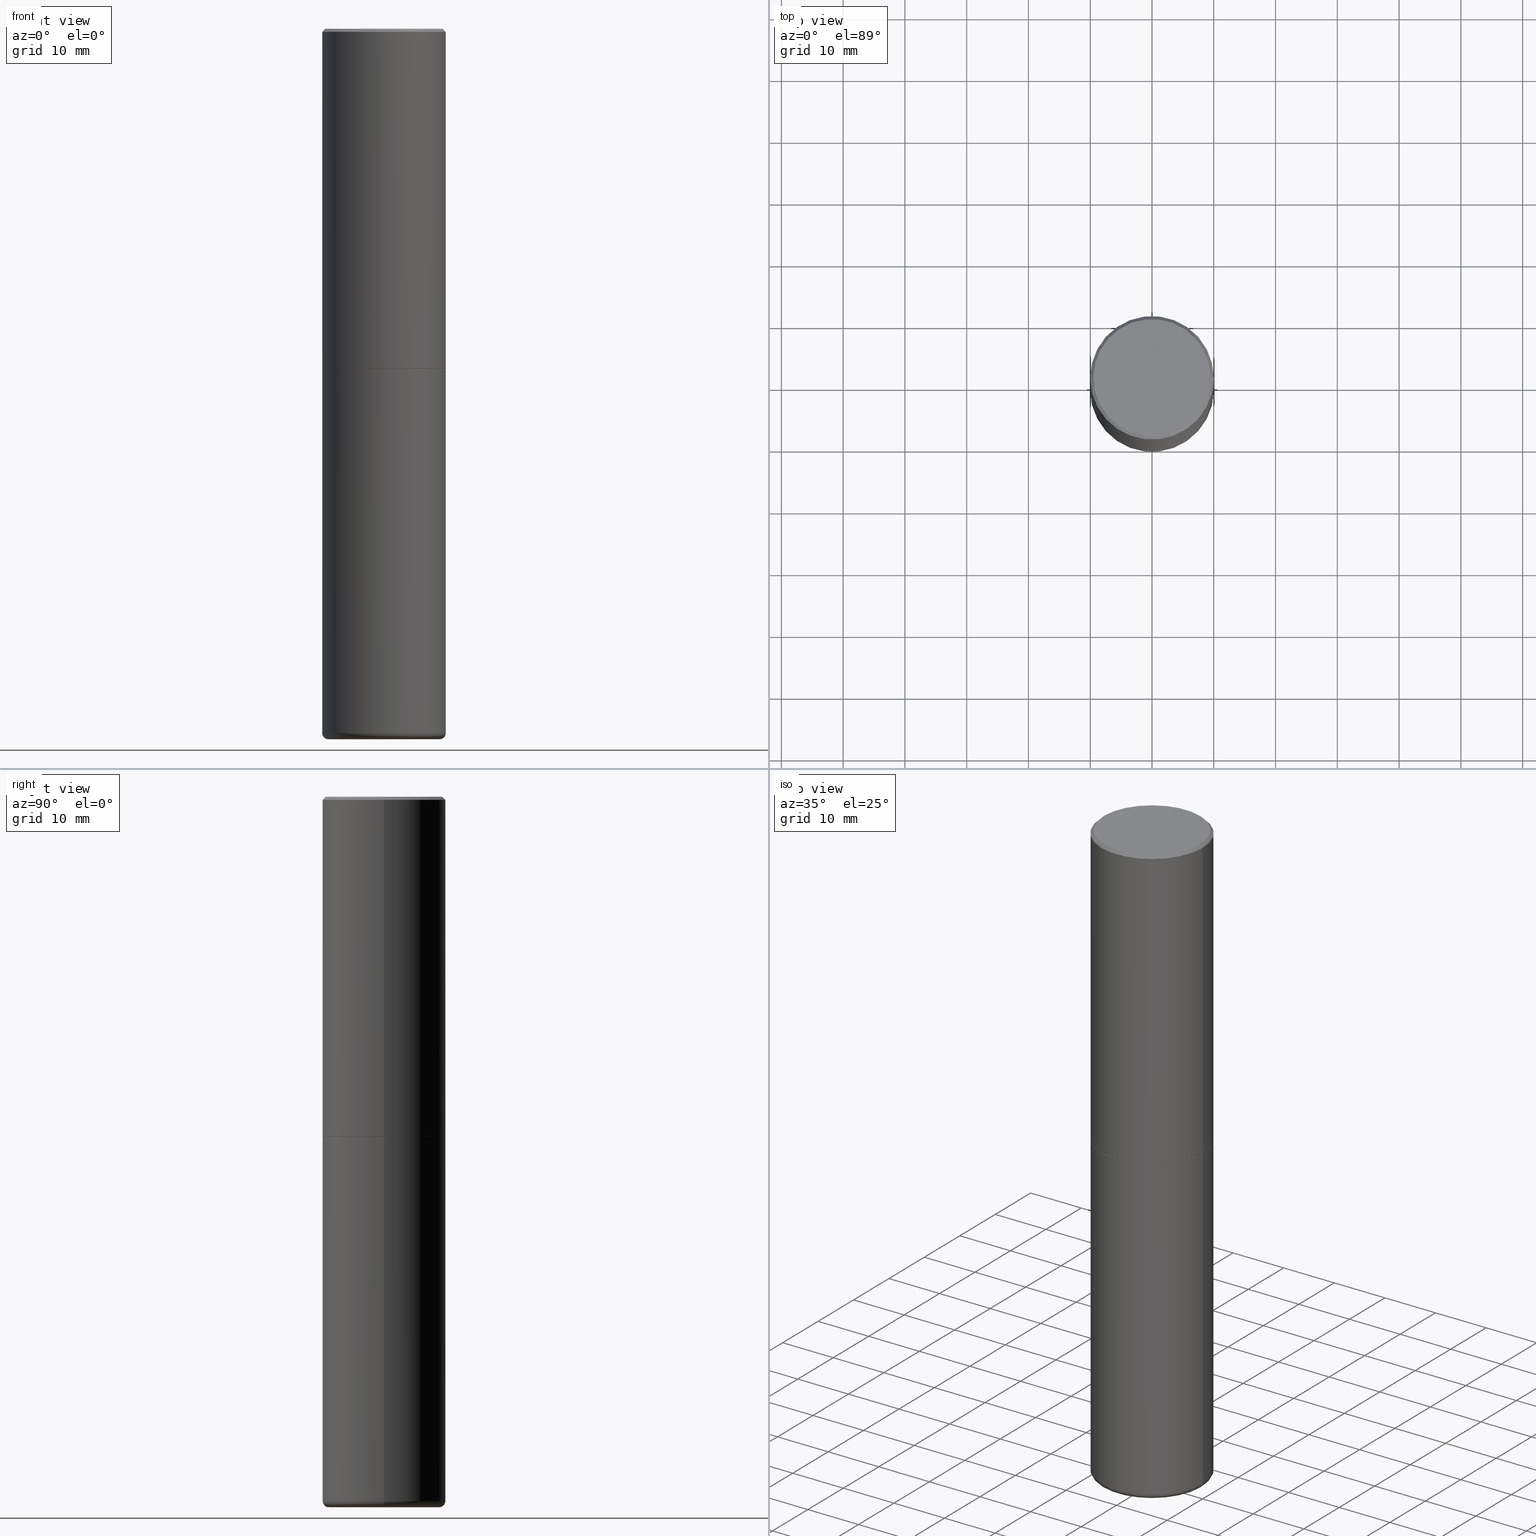
[diagram: canonical four-view strip — front | top / right | iso, engineering-drawing reading convention]
A machine part, canonical four-view strip (front | top / right | iso — engineering-drawing reading convention). The complete STEP part file that produces these views, byte-faithful:
ISO-10303-21;
HEADER;
FILE_DESCRIPTION (( 'STEP AP203' ),
    '1' );
FILE_NAME ('74827.STEP',
    '2024-05-02T19:21:37',
    ( '' ),
    ( '' ),
    'SwSTEP 2.0',
    'SolidWorks 2023',
    '' );
FILE_SCHEMA (( 'CONFIG_CONTROL_DESIGN' ));
ENDSEC;

DATA;
#1 = CARTESIAN_POINT ( 'NONE',  ( -0.3937000000000002720, -1.015989167596965718E-15, -2.164399999999999658 ) ) ;
#2 = CIRCLE ( 'NONE', #319, 0.3937000000000001054 ) ;
#3 = VERTEX_POINT ( 'NONE', #130 ) ;
#4 = CARTESIAN_POINT ( 'NONE',  ( 0.3937000000000001054, -1.841965895120088790E-14, -4.488199999999999079 ) ) ;
#5 = CARTESIAN_POINT ( 'NONE',  ( 2.609533152651356620E-15, 0.3736999999999999211, -1.191650995338022328E-15 ) ) ;
#6 = CC_DESIGN_PERSON_AND_ORGANIZATION_ASSIGNMENT ( #188, #283, ( #333 ) ) ;
#7 = FACE_OUTER_BOUND ( 'NONE', #301, .T. ) ;
#8 = DIRECTION ( 'NONE',  ( 1.000000000000000000, -6.982962677686266711E-15, 4.876176775795935793E-29 ) ) ;
#9 = VECTOR ( 'NONE', #87, 39.37007874015748143 ) ;
#10 =( LENGTH_UNIT ( ) NAMED_UNIT ( * ) SI_UNIT ( $, .METRE. ) );
#11 = ADVANCED_FACE ( 'NONE', ( #230 ), #215, .T. ) ;
#12 = ORIENTED_EDGE ( 'NONE', *, *, #145, .T. ) ;
#13 = FACE_OUTER_BOUND ( 'NONE', #133, .T. ) ;
#14 = ORIENTED_EDGE ( 'NONE', *, *, #314, .T. ) ;
#15 = DIRECTION ( 'NONE',  ( -1.000000000000000000, 6.982962677686265922E-15, -4.876176775795935793E-29 ) ) ;
#16 = AXIS2_PLACEMENT_3D ( 'NONE', #108, #79, #73 ) ;
#17 = EDGE_CURVE ( 'NONE', #368, #144, #34, .T. ) ;
#18 = FACE_OUTER_BOUND ( 'NONE', #75, .T. ) ;
#19 = CARTESIAN_POINT ( 'NONE',  ( 5.295418152913293224E-29, -7.560453691130945845E-15, -2.165399999999999547 ) ) ;
#20 = PERSON_AND_ORGANIZATION ( #64, #248 ) ;
#21 = ORIENTED_EDGE ( 'NONE', *, *, #81, .T. ) ;
#22 = DIRECTION ( 'NONE',  ( -2.445468806185136877E-29, 3.491481338843145188E-15, 1.000000000000000000 ) ) ;
#23 = APPROVAL_ROLE ( '' ) ;
#24 = AXIS2_PLACEMENT_3D ( 'NONE', #399, #377, #309 ) ;
#25 = DATE_AND_TIME ( #92, #128 ) ;
#26 = PERSON_AND_ORGANIZATION_ROLE ( 'creator' ) ;
#27 = CALENDAR_DATE ( 2024, 2, 5 ) ;
#28 = CC_DESIGN_PERSON_AND_ORGANIZATION_ASSIGNMENT ( #216, #351, ( #85 ) ) ;
#29 = VECTOR ( 'NONE', #22, 39.37007874015748143 ) ;
#30 = VERTEX_POINT ( 'NONE', #152 ) ;
#31 = DIRECTION ( 'NONE',  ( -1.000000000000000000, 6.982962677686265922E-15, -4.876176775795935793E-29 ) ) ;
#32 = CARTESIAN_POINT ( 'NONE',  ( 5.295418152913293224E-29, -7.560453691130945845E-15, -2.165399999999999547 ) ) ;
#33 = VERTEX_POINT ( 'NONE', #282 ) ;
#34 = CIRCLE ( 'NONE', #76, 0.03940000000000005997 ) ;
#35 = CARTESIAN_POINT ( 'NONE',  ( -0.3543000000000000038, -1.315301363219776772E-14, -4.488199999999999079 ) ) ;
#36 = CARTESIAN_POINT ( 'NONE',  ( 4.890937612370294178E-31, -6.982962677686321191E-17, -0.02000000000000008715 ) ) ;
#37 = APPROVAL_PERSON_ORGANIZATION ( #187, #286, #322 ) ;
#38 = DIRECTION ( 'NONE',  ( -1.000000000000000000, 6.982962677686266711E-15, 0.000000000000000000 ) ) ;
#39 = CARTESIAN_POINT ( 'NONE',  ( -0.3937000000000002164, 2.797406750687515970E-15, -1.936584745033357576E-29 ) ) ;
#40 = MANIFOLD_SOLID_BREP ( 'Body-Move/Copy2[1]', #307 ) ;
#41 = AXIS2_PLACEMENT_3D ( 'NONE', #236, #271, #15 ) ;
#42 = DIRECTION ( 'NONE',  ( -2.445468806185136597E-29, 3.491481338843145583E-15, 1.000000000000000000 ) ) ;
#43 = DIRECTION ( 'NONE',  ( -2.445468806185136597E-29, 3.491481338843145583E-15, 1.000000000000000000 ) ) ;
#44 = CARTESIAN_POINT ( 'NONE',  ( 0.3937000000000001054, -2.770807688499516128E-15, -0.02000000000000008715 ) ) ;
#45 = EDGE_LOOP ( 'NONE', ( #209, #101, #239, #124 ) ) ;
#46 = CIRCLE ( 'NONE', #140, 0.3926999999999999935 ) ;
#47 = DIRECTION ( 'NONE',  ( -2.445468806185136597E-29, 3.491481338843145583E-15, 1.000000000000000000 ) ) ;
#48 = EDGE_LOOP ( 'NONE', ( #394, #313 ) ) ;
#49 = DATE_AND_TIME ( #27, #52 ) ;
#50 = COORDINATED_UNIVERSAL_TIME_OFFSET ( 5, 0, .BEHIND. ) ;
#51 = VECTOR ( 'NONE', #170, 39.37007874015748143 ) ;
#52 = LOCAL_TIME ( 15, 21, 37.00000000000000000, #324 ) ;
#53 = LENGTH_MEASURE_WITH_UNIT ( LENGTH_MEASURE( 0.02539999999999999897 ), #10 );
#54 = CALENDAR_DATE ( 2024, 2, 5 ) ;
#55 = EDGE_CURVE ( 'NONE', #63, #3, #298, .T. ) ;
#56 = APPROVAL_ROLE ( '' ) ;
#57 = ORIENTED_EDGE ( 'NONE', *, *, #145, .F. ) ;
#58 = AXIS2_PLACEMENT_3D ( 'NONE', #402, #241, #338 ) ;
#59 = AXIS2_PLACEMENT_3D ( 'NONE', #235, #370, #337 ) ;
#60 = APPROVAL_PERSON_ORGANIZATION ( #184, #275, #23 ) ;
#61 = DIRECTION ( 'NONE',  ( -2.445468806185136597E-29, 3.491481338843145583E-15, 1.000000000000000000 ) ) ;
#62 = DIRECTION ( 'NONE',  ( -1.000000000000000000, 6.982962677686266711E-15, 0.000000000000000000 ) ) ;
#63 = VERTEX_POINT ( 'NONE', #91 ) ;
#64 = PERSON ( 'UNSPECIFIED', 'UNSPECIFIED', 'UNSPECIFIED', ('UNSPECIFIED'), ('UNSPECIFIED'), ('UNSPECIFIED') ) ;
#65 = SHAPE_DEFINITION_REPRESENTATION ( #311, #202 ) ;
#66 = DIRECTION ( 'NONE',  ( 2.438088387897960049E-29, -3.491481338843145188E-15, -1.000000000000000000 ) ) ;
#67 = EDGE_CURVE ( 'NONE', #30, #403, #183, .T. ) ;
#68 = ORIENTED_EDGE ( 'NONE', *, *, #153, .F. ) ;
#69 = FACE_OUTER_BOUND ( 'NONE', #109, .T. ) ;
#70 = ORIENTED_EDGE ( 'NONE', *, *, #409, .T. ) ;
#71 = FACE_OUTER_BOUND ( 'NONE', #228, .T. ) ;
#72 = EDGE_CURVE ( 'NONE', #368, #182, #339, .T. ) ;
#73 = DIRECTION ( 'NONE',  ( 1.000000000000000000, -6.982962677686317987E-15, 0.000000000000000000 ) ) ;
#74 = CARTESIAN_POINT ( 'NONE',  ( -0.3926999999999999935, -4.770152367801032067E-15, -2.165399999999999547 ) ) ;
#75 = EDGE_LOOP ( 'NONE', ( #270, #156, #302, #380 ) ) ;
#76 = AXIS2_PLACEMENT_3D ( 'NONE', #35, #205, #148 ) ;
#77 = LOCAL_TIME ( 15, 21, 37.00000000000000000, #143 ) ;
#78 = FACE_OUTER_BOUND ( 'NONE', #48, .T. ) ;
#79 = DIRECTION ( 'NONE',  ( -6.982962677686266711E-15, -1.000000000000000000, 3.491481338843145583E-15 ) ) ;
#80 = ORIENTED_EDGE ( 'NONE', *, *, #362, .F. ) ;
#81 = EDGE_CURVE ( 'NONE', #137, #406, #253, .T. ) ;
#82 = CARTESIAN_POINT ( 'NONE',  ( 0.000000000000000000, 0.000000000000000000, 0.000000000000000000 ) ) ;
#83 = ORIENTED_EDGE ( 'NONE', *, *, #179, .F. ) ;
#84 = CIRCLE ( 'NONE', #240, 0.3937000000000001054 ) ;
#85 = PRODUCT_DEFINITION_FORMATION_WITH_SPECIFIED_SOURCE ( 'ANY', '', #180, .NOT_KNOWN. ) ;
#86 = ORIENTED_EDGE ( 'NONE', *, *, #358, .T. ) ;
#87 = DIRECTION ( 'NONE',  ( -2.445468806185136877E-29, 3.491481338843145188E-15, 1.000000000000000000 ) ) ;
#88 = SECURITY_CLASSIFICATION_LEVEL ( 'unclassified' ) ;
#89 = AXIS2_PLACEMENT_3D ( 'NONE', #361, #231, #396 ) ;
#90 = EDGE_CURVE ( 'NONE', #233, #406, #326, .T. ) ;
#91 = CARTESIAN_POINT ( 'NONE',  ( 0.3736999999999999211, -2.667287895133367964E-15, 2.262311619753402158E-16 ) ) ;
#92 = CALENDAR_DATE ( 2024, 2, 5 ) ;
#93 = CARTESIAN_POINT ( 'NONE',  ( -0.3937000000000001054, -1.287305979430828910E-14, -4.488199999999999079 ) ) ;
#94 = CIRCLE ( 'NONE', #189, 0.3736999999999999211 ) ;
#95 = CC_DESIGN_SECURITY_CLASSIFICATION ( #333, ( #85 ) ) ;
#96 = ORIENTED_EDGE ( 'NONE', *, *, #55, .F. ) ;
#97 = DIRECTION ( 'NONE',  ( -2.445468806185136597E-29, 3.491481338843145583E-15, 1.000000000000000000 ) ) ;
#98 = CARTESIAN_POINT ( 'NONE',  ( 1.107210456688382298E-28, -1.580803090974622389E-14, -4.527599999999999625 ) ) ;
#99 = ORIENTED_EDGE ( 'NONE', *, *, #67, .T. ) ;
#100 = CARTESIAN_POINT ( 'NONE',  ( 0.3926999999999999935, -1.030266313465834305E-14, -2.165399999999999547 ) ) ;
#101 = ORIENTED_EDGE ( 'NONE', *, *, #387, .T. ) ;
#102 = AXIS2_PLACEMENT_3D ( 'NONE', #279, #116, #222 ) ;
#103 = CYLINDRICAL_SURFACE ( 'NONE', #89, 0.3937000000000000499 ) ;
#104 = APPROVAL ( #414, 'UNSPECIFIED' ) ;
#105 = DIRECTION ( 'NONE',  ( -2.445468806185136597E-29, 3.491481338843145583E-15, 1.000000000000000000 ) ) ;
#106 = UNCERTAINTY_MEASURE_WITH_UNIT (LENGTH_MEASURE( 1.000000000000000082E-05 ), #121, 'distance_accuracy_value', 'NONE');
#107 = DIRECTION ( 'NONE',  ( 1.000000000000000000, -6.982962677686269077E-15, 0.000000000000000000 ) ) ;
#108 = CARTESIAN_POINT ( 'NONE',  ( 0.3543000000000000038, -1.814453022170004631E-14, -4.488199999999999079 ) ) ;
#109 = EDGE_LOOP ( 'NONE', ( #343, #142, #86, #418 ) ) ;
#110 = CIRCLE ( 'NONE', #360, 0.3937000000000002720 ) ;
#111 = EDGE_CURVE ( 'NONE', #136, #30, #165, .T. ) ;
#112 = DIRECTION ( 'NONE',  ( 1.000000000000000000, -6.982962677686266711E-15, 4.876176775795935793E-29 ) ) ;
#113 = DIRECTION ( 'NONE',  ( -2.445468806185136597E-29, 3.491481338843145583E-15, 1.000000000000000000 ) ) ;
#114 = ORIENTED_EDGE ( 'NONE', *, *, #358, .F. ) ;
#115 = AXIS2_PLACEMENT_3D ( 'NONE', #19, #186, #293 ) ;
#116 = DIRECTION ( 'NONE',  ( -2.445468806185136597E-29, 3.491481338843145583E-15, 1.000000000000000000 ) ) ;
#117 = ADVANCED_FACE ( 'NONE', ( #192 ), #195, .T. ) ;
#118 = LOCAL_TIME ( 15, 21, 37.00000000000000000, #150 ) ;
#119 = APPROVAL_DATE_TIME ( #278, #104 ) ;
#120 = ORIENTED_EDGE ( 'NONE', *, *, #367, .F. ) ;
#121 =( CONVERSION_BASED_UNIT ( 'INCH', #53 ) LENGTH_UNIT ( ) NAMED_UNIT ( #325 ) );
#122 = AXIS2_PLACEMENT_3D ( 'NONE', #158, #198, #8 ) ;
#123 = APPROVAL_STATUS ( 'not_yet_approved' ) ;
#124 = ORIENTED_EDGE ( 'NONE', *, *, #111, .F. ) ;
#125 = DIRECTION ( 'NONE',  ( 2.445468806185136597E-29, -3.491481338843145583E-15, -1.000000000000000000 ) ) ;
#126 = PRODUCT_DEFINITION ( 'UNKNOWN', '', #85, #371 ) ;
#127 = AXIS2_PLACEMENT_3D ( 'NONE', #5, #66, #261 ) ;
#128 = LOCAL_TIME ( 15, 21, 37.00000000000000000, #50 ) ;
#129 = DIRECTION ( 'NONE',  ( -2.445468806185136597E-29, 3.491481338843145583E-15, 1.000000000000000000 ) ) ;
#130 = CARTESIAN_POINT ( 'NONE',  ( -0.3736999999999999211, 2.644447966039789453E-15, 2.262311619753034352E-16 ) ) ;
#131 = DIRECTION ( 'NONE',  ( -2.445468806185136877E-29, 3.491481338843145188E-15, 1.000000000000000000 ) ) ;
#132 = ADVANCED_FACE ( 'NONE', ( #297 ), #331, .F. ) ;
#133 = EDGE_LOOP ( 'NONE', ( #68, #373, #99, #57 ) ) ;
#134 = DIRECTION ( 'NONE',  ( 2.438088387897960049E-29, -3.491481338843145188E-15, -1.000000000000000000 ) ) ;
#135 = FACE_OUTER_BOUND ( 'NONE', #352, .T. ) ;
#136 = VERTEX_POINT ( 'NONE', #390 ) ;
#137 = VERTEX_POINT ( 'NONE', #200 ) ;
#138 = FACE_OUTER_BOUND ( 'NONE', #211, .T. ) ;
#139 = DIRECTION ( 'NONE',  ( 1.000000000000000000, -6.982962677686265922E-15, 4.876176775795935793E-29 ) ) ;
#140 = AXIS2_PLACEMENT_3D ( 'NONE', #193, #328, #290 ) ;
#141 = CARTESIAN_POINT ( 'NONE',  ( -0.3937000000000001054, 2.679362779428220707E-15, -0.02000000000000008715 ) ) ;
#142 = ORIENTED_EDGE ( 'NONE', *, *, #72, .T. ) ;
#143 = COORDINATED_UNIVERSAL_TIME_OFFSET ( 5, 0, .BEHIND. ) ;
#144 = VERTEX_POINT ( 'NONE', #93 ) ;
#145 = EDGE_CURVE ( 'NONE', #33, #403, #2, .T. ) ;
#146 = APPLICATION_PROTOCOL_DEFINITION ( 'international standard', 'config_control_design', 1994, #159 ) ;
#147 = CIRCLE ( 'NONE', #374, 0.3937000000000000499 ) ;
#148 = DIRECTION ( 'NONE',  ( -1.000000000000000000, 7.105427357601014480E-15, 0.000000000000000000 ) ) ;
#149 = AXIS2_PLACEMENT_3D ( 'NONE', #376, #42, #139 ) ;
#150 = COORDINATED_UNIVERSAL_TIME_OFFSET ( 5, 0, .BEHIND. ) ;
#151 = DATE_TIME_ROLE ( 'creation_date' ) ;
#152 = CARTESIAN_POINT ( 'NONE',  ( 0.3937000000000002720, -1.030615461599718763E-14, -2.164399999999999658 ) ) ;
#153 = EDGE_CURVE ( 'NONE', #171, #33, #265, .T. ) ;
#154 = DATE_TIME_ROLE ( 'classification_date' ) ;
#155 = AXIS2_PLACEMENT_3D ( 'NONE', #98, #395, #366 ) ;
#156 = ORIENTED_EDGE ( 'NONE', *, *, #245, .T. ) ;
#157 = CARTESIAN_POINT ( 'NONE',  ( 0.3543000000000000038, -1.828209458645046868E-14, -4.527599999999999625 ) ) ;
#158 = CARTESIAN_POINT ( 'NONE',  ( 0.000000000000000000, 0.000000000000000000, 0.000000000000000000 ) ) ;
#159 = APPLICATION_CONTEXT ( 'configuration controlled 3d designs of mechanical parts and assemblies' ) ;
#160 = VECTOR ( 'NONE', #206, 39.37007874015748143 ) ;
#161 = VECTOR ( 'NONE', #175, 39.37007874015748143 ) ;
#162 = DIRECTION ( 'NONE',  ( 1.000000000000000000, -6.982962677686268288E-15, 0.000000000000000000 ) ) ;
#163 = ADVANCED_FACE ( 'NONE', ( #71 ), #103, .T. ) ;
#164 = CARTESIAN_POINT ( 'NONE',  ( 4.890937612370294178E-31, -6.982962677686321191E-17, -0.02000000000000008715 ) ) ;
#165 = LINE ( 'NONE', #100, #177 ) ;
#166 = AXIS2_PLACEMENT_3D ( 'NONE', #348, #47, #210 ) ;
#167 = DIRECTION ( 'NONE',  ( 1.000000000000000000, -6.982962677686266711E-15, 4.877734241229876808E-29 ) ) ;
#168 = ORIENTED_EDGE ( 'NONE', *, *, #204, .F. ) ;
#169 = ADVANCED_FACE ( 'NONE', ( #7 ), #393, .F. ) ;
#170 = DIRECTION ( 'NONE',  ( -2.445468806185136877E-29, 3.491481338843145188E-15, 1.000000000000000000 ) ) ;
#171 = VERTEX_POINT ( 'NONE', #1 ) ;
#172 = CC_DESIGN_PERSON_AND_ORGANIZATION_ASSIGNMENT ( #20, #249, ( #85 ) ) ;
#173 = DIRECTION ( 'NONE',  ( 1.000000000000000000, -6.982962677686268288E-15, 0.000000000000000000 ) ) ;
#174 = ORIENTED_EDGE ( 'NONE', *, *, #367, .T. ) ;
#175 = DIRECTION ( 'NONE',  ( 0.7071067811865454633, -7.319954787623248157E-15, -0.7071067811865495711 ) ) ;
#176 = ORIENTED_EDGE ( 'NONE', *, *, #55, .T. ) ;
#177 = VECTOR ( 'NONE', #289, 39.37007874015748143 ) ;
#178 = LOCAL_TIME ( 15, 21, 37.00000000000000000, #355 ) ;
#179 = EDGE_CURVE ( 'NONE', #406, #137, #147, .T. ) ;
#180 = PRODUCT ( '74827', '74827', '', ( #221 ) ) ;
#181 = CARTESIAN_POINT ( 'NONE',  ( 0.3937000000000000499, -1.030964609733602906E-14, -2.165399999999999547 ) ) ;
#182 = VERTEX_POINT ( 'NONE', #157 ) ;
#183 = LINE ( 'NONE', #316, #29 ) ;
#184 = PERSON_AND_ORGANIZATION ( #64, #248 ) ;
#185 = CONICAL_SURFACE ( 'NONE', #273, 0.3937000000000001054, 0.7853981633974453924 ) ;
#186 = DIRECTION ( 'NONE',  ( -2.445468806185136597E-29, 3.491481338843145583E-15, 1.000000000000000000 ) ) ;
#187 = PERSON_AND_ORGANIZATION ( #64, #248 ) ;
#188 = PERSON_AND_ORGANIZATION ( #64, #248 ) ;
#189 = AXIS2_PLACEMENT_3D ( 'NONE', #305, #105, #167 ) ;
#190 = APPROVAL_PERSON_ORGANIZATION ( #223, #104, #56 ) ;
#191 = ADVANCED_FACE ( 'NONE', ( #264 ), #404, .T. ) ;
#192 = FACE_OUTER_BOUND ( 'NONE', #397, .T. ) ;
#193 = CARTESIAN_POINT ( 'NONE',  ( 5.295418152913293224E-29, -7.560453691130945845E-15, -2.165399999999999547 ) ) ;
#194 = ORIENTED_EDGE ( 'NONE', *, *, #250, .T. ) ;
#195 = CYLINDRICAL_SURFACE ( 'NONE', #122, 0.3937000000000002164 ) ;
#196 = AXIS2_PLACEMENT_3D ( 'NONE', #357, #285, #389 ) ;
#197 = DIRECTION ( 'NONE',  ( 1.000000000000000000, -6.982962677686271444E-15, 4.883557194083114022E-29 ) ) ;
#198 = DIRECTION ( 'NONE',  ( -2.445468806185136597E-29, 3.491481338843145583E-15, 1.000000000000000000 ) ) ;
#199 = ORIENTED_EDGE ( 'NONE', *, *, #204, .T. ) ;
#200 = CARTESIAN_POINT ( 'NONE',  ( -0.3937000000000000499, -8.818053367375859687E-15, -2.165399999999999547 ) ) ;
#201 = CARTESIAN_POINT ( 'NONE',  ( -0.3543000000000000038, -1.308181889562823723E-14, -4.527599999999999625 ) ) ;
#202 = ADVANCED_BREP_SHAPE_REPRESENTATION ( '74827', ( #40, #315, #308 ), #266 ) ;
#203 = CIRCLE ( 'NONE', #155, 0.3543000000000000038 ) ;
#204 = EDGE_CURVE ( 'NONE', #224, #136, #369, .T. ) ;
#205 = DIRECTION ( 'NONE',  ( 7.105427357601001859E-15, 1.000000000000000000, -3.491481338843145583E-15 ) ) ;
#206 = DIRECTION ( 'NONE',  ( -0.7071067811866199593, 7.493145998870616062E-15, 0.7071067811864750752 ) ) ;
#207 = ORIENTED_EDGE ( 'NONE', *, *, #111, .T. ) ;
#208 = CARTESIAN_POINT ( 'NONE',  ( 1.097575309592012950E-28, -1.567046654499580152E-14, -4.488199999999999079 ) ) ;
#209 = ORIENTED_EDGE ( 'NONE', *, *, #232, .T. ) ;
#210 = DIRECTION ( 'NONE',  ( 1.000000000000000000, -6.982962677686269077E-15, 0.000000000000000000 ) ) ;
#211 = EDGE_LOOP ( 'NONE', ( #378, #199, #207, #80 ) ) ;
#212 = ADVANCED_FACE ( 'NONE', ( #392 ), #185, .T. ) ;
#213 = FACE_OUTER_BOUND ( 'NONE', #45, .T. ) ;
#214 = ORIENTED_EDGE ( 'NONE', *, *, #153, .T. ) ;
#215 = TOROIDAL_SURFACE ( 'NONE', #391, 0.3543000000000000038, 0.03940000000000005997 ) ;
#216 = PERSON_AND_ORGANIZATION ( #64, #248 ) ;
#217 = APPROVAL_DATE_TIME ( #281, #275 ) ;
#218 = DIRECTION ( 'NONE',  ( 1.000000000000000000, 0.000000000000000000, 0.000000000000000000 ) ) ;
#219 = CIRCLE ( 'NONE', #16, 0.03940000000000005997 ) ;
#220 = AXIS2_PLACEMENT_3D ( 'NONE', #208, #43, #312 ) ;
#221 = MECHANICAL_CONTEXT ( 'NONE', #246, 'mechanical' ) ;
#222 = DIRECTION ( 'NONE',  ( 1.000000000000000000, -6.982962677686266711E-15, 0.000000000000000000 ) ) ;
#223 = PERSON_AND_ORGANIZATION ( #64, #248 ) ;
#224 = VERTEX_POINT ( 'NONE', #363 ) ;
#225 = CARTESIAN_POINT ( 'NONE',  ( 4.890937612370294178E-31, -6.982962677686321191E-17, -0.02000000000000008715 ) ) ;
#226 = CIRCLE ( 'NONE', #347, 0.3937000000000000499 ) ;
#227 = DIRECTION ( 'NONE',  ( 2.445468806185136597E-29, -3.491481338843145583E-15, -1.000000000000000000 ) ) ;
#228 = EDGE_LOOP ( 'NONE', ( #70, #14, #83, #304 ) ) ;
#229 = DIRECTION ( 'NONE',  ( -2.445468806185136597E-29, 3.491481338843145583E-15, 1.000000000000000000 ) ) ;
#230 = FACE_OUTER_BOUND ( 'NONE', #349, .T. ) ;
#231 = DIRECTION ( 'NONE',  ( -2.445468806185136597E-29, 3.491481338843145583E-15, 1.000000000000000000 ) ) ;
#232 = EDGE_CURVE ( 'NONE', #136, #224, #46, .T. ) ;
#233 = VERTEX_POINT ( 'NONE', #4 ) ;
#234 = VECTOR ( 'NONE', #131, 39.37007874015748143 ) ;
#235 = CARTESIAN_POINT ( 'NONE',  ( 1.097575309592012950E-28, -1.567046654499580152E-14, -4.488199999999999079 ) ) ;
#236 = CARTESIAN_POINT ( 'NONE',  ( 1.107210456688382298E-28, -1.580803090974622389E-14, -4.527599999999999625 ) ) ;
#237 = PRODUCT_RELATED_PRODUCT_CATEGORY ( 'detail', '', ( #180 ) ) ;
#238 = PLANE ( 'NONE',  #41 ) ;
#239 = ORIENTED_EDGE ( 'NONE', *, *, #318, .F. ) ;
#240 = AXIS2_PLACEMENT_3D ( 'NONE', #296, #400, #372 ) ;
#241 = DIRECTION ( 'NONE',  ( -2.445468806185136597E-29, 3.491481338843145583E-15, 1.000000000000000000 ) ) ;
#242 = ORIENTED_EDGE ( 'NONE', *, *, #232, .F. ) ;
#243 = CARTESIAN_POINT ( 'NONE',  ( 0.3937000000000001054, -2.770807688499516128E-15, -0.02000000000000008715 ) ) ;
#244 = ORIENTED_EDGE ( 'NONE', *, *, #17, .T. ) ;
#245 = EDGE_CURVE ( 'NONE', #144, #233, #226, .T. ) ;
#246 = APPLICATION_CONTEXT ( 'configuration controlled 3d designs of mechanical parts and assemblies' ) ;
#247 = CYLINDRICAL_SURFACE ( 'NONE', #149, 0.3937000000000000499 ) ;
#248 = ORGANIZATION ( 'UNSPECIFIED', 'UNSPECIFIED', '' ) ;
#249 = PERSON_AND_ORGANIZATION_ROLE ( 'creator' ) ;
#250 = EDGE_CURVE ( 'NONE', #182, #368, #203, .T. ) ;
#251 = ADVANCED_FACE ( 'NONE', ( #69 ), #398, .T. ) ;
#252 = PERSON_AND_ORGANIZATION ( #64, #248 ) ;
#253 = CIRCLE ( 'NONE', #115, 0.3937000000000000499 ) ;
#254 = CC_DESIGN_APPROVAL ( #286, ( #126 ) ) ;
#255 =( NAMED_UNIT ( * ) PLANE_ANGLE_UNIT ( ) SI_UNIT ( $, .RADIAN. ) );
#256 = CC_DESIGN_PERSON_AND_ORGANIZATION_ASSIGNMENT ( #252, #359, ( #180 ) ) ;
#257 = EDGE_LOOP ( 'NONE', ( #96, #346, #341, #120 ) ) ;
#258 = CARTESIAN_POINT ( 'NONE',  ( 5.295418152913293224E-29, -7.560453691130945845E-15, -2.165399999999999547 ) ) ;
#259 = ORIENTED_EDGE ( 'NONE', *, *, #318, .T. ) ;
#260 = CARTESIAN_POINT ( 'NONE',  ( 5.295418152913293224E-29, -7.560453691130945845E-15, -2.165399999999999547 ) ) ;
#261 = DIRECTION ( 'NONE',  ( -1.000000000000000000, 6.982962677686265922E-15, -4.876176775795935793E-29 ) ) ;
#262 = EDGE_CURVE ( 'NONE', #403, #33, #84, .T. ) ;
#263 = CARTESIAN_POINT ( 'NONE',  ( 1.097575309592012950E-28, -1.567046654499580152E-14, -4.488199999999999079 ) ) ;
#264 = FACE_OUTER_BOUND ( 'NONE', #257, .T. ) ;
#265 = LINE ( 'NONE', #39, #234 ) ;
#266 =( GEOMETRIC_REPRESENTATION_CONTEXT ( 3 ) GLOBAL_UNCERTAINTY_ASSIGNED_CONTEXT ( ( #106 ) ) GLOBAL_UNIT_ASSIGNED_CONTEXT ( ( #121, #255, #410 ) ) REPRESENTATION_CONTEXT ( 'NONE', 'WORKASPACE' ) );
#267 = PLANE ( 'NONE',  #24 ) ;
#268 = CC_DESIGN_PERSON_AND_ORGANIZATION_ASSIGNMENT ( #320, #26, ( #126 ) ) ;
#269 = LINE ( 'NONE', #141, #411 ) ;
#270 = ORIENTED_EDGE ( 'NONE', *, *, #314, .F. ) ;
#271 = DIRECTION ( 'NONE',  ( 2.438088387897960049E-29, -3.491481338843145188E-15, -1.000000000000000000 ) ) ;
#272 = EDGE_LOOP ( 'NONE', ( #365, #21 ) ) ;
#273 = AXIS2_PLACEMENT_3D ( 'NONE', #164, #227, #62 ) ;
#274 = CARTESIAN_POINT ( 'NONE',  ( 5.292972684107107621E-29, -7.556962209792102838E-15, -2.164399999999999658 ) ) ;
#275 = APPROVAL ( #123, 'UNSPECIFIED' ) ;
#276 = LINE ( 'NONE', #74, #160 ) ;
#277 = ORIENTED_EDGE ( 'NONE', *, *, #413, .F. ) ;
#278 = DATE_AND_TIME ( #54, #118 ) ;
#279 = CARTESIAN_POINT ( 'NONE',  ( 1.107210456688382298E-28, -1.580803090974622389E-14, -4.527599999999999625 ) ) ;
#280 = AXIS2_PLACEMENT_3D ( 'NONE', #82, #407, #112 ) ;
#281 = DATE_AND_TIME ( #317, #77 ) ;
#282 = CARTESIAN_POINT ( 'NONE',  ( -0.3937000000000001054, 2.679362779428220707E-15, -0.02000000000000008715 ) ) ;
#283 = PERSON_AND_ORGANIZATION_ROLE ( 'classification_officer' ) ;
#284 = DIRECTION ( 'NONE',  ( 0.000000000000000000, 0.000000000000000000, 1.000000000000000000 ) ) ;
#285 = DIRECTION ( 'NONE',  ( -2.445468806185136597E-29, 3.491481338843145583E-15, 1.000000000000000000 ) ) ;
#286 = APPROVAL ( #412, 'UNSPECIFIED' ) ;
#287 = AXIS2_PLACEMENT_3D ( 'NONE', #258, #134, #31 ) ;
#288 = ORIENTED_EDGE ( 'NONE', *, *, #67, .F. ) ;
#289 = DIRECTION ( 'NONE',  ( 0.7071067811866199593, -2.468850131083015945E-15, 0.7071067811864750752 ) ) ;
#290 = DIRECTION ( 'NONE',  ( 1.000000000000000000, -6.982962677686268288E-15, 0.000000000000000000 ) ) ;
#291 = CLOSED_SHELL ( 'NONE', ( #306, #117, #191, #212, #292, #336, #417, #169 ) ) ;
#292 = ADVANCED_FACE ( 'NONE', ( #13 ), #300, .T. ) ;
#293 = DIRECTION ( 'NONE',  ( 1.000000000000000000, -6.982962677686265133E-15, 0.000000000000000000 ) ) ;
#294 = DIRECTION ( 'NONE',  ( -2.445468806185136597E-29, 3.491481338843145583E-15, 1.000000000000000000 ) ) ;
#295 = CARTESIAN_POINT ( 'NONE',  ( 1.097575309592012950E-28, -1.567046654499580152E-14, -4.488199999999999079 ) ) ;
#296 = CARTESIAN_POINT ( 'NONE',  ( 4.890937612370294178E-31, -6.982962677686321191E-17, -0.02000000000000008715 ) ) ;
#297 = FACE_OUTER_BOUND ( 'NONE', #272, .T. ) ;
#298 = CIRCLE ( 'NONE', #196, 0.3736999999999999211 ) ;
#299 = CIRCLE ( 'NONE', #166, 0.3937000000000002720 ) ;
#300 = CYLINDRICAL_SURFACE ( 'NONE', #280, 0.3937000000000002164 ) ;
#301 = EDGE_LOOP ( 'NONE', ( #330, #176 ) ) ;
#302 = ORIENTED_EDGE ( 'NONE', *, *, #90, .T. ) ;
#303 = LINE ( 'NONE', #379, #51 ) ;
#304 = ORIENTED_EDGE ( 'NONE', *, *, #90, .F. ) ;
#305 = CARTESIAN_POINT ( 'NONE',  ( -5.532412495976664402E-45, 7.898818803016371119E-31, 2.262311619753217762E-16 ) ) ;
#306 = ADVANCED_FACE ( 'NONE', ( #213 ), #382, .T. ) ;
#307 = CLOSED_SHELL ( 'NONE', ( #163, #11, #132, #401, #251, #344 ) ) ;
#308 = AXIS2_PLACEMENT_3D ( 'NONE', #384, #284, #218 ) ;
#309 = DIRECTION ( 'NONE',  ( 1.000000000000000000, -6.982962677686265922E-15, 4.876176775795935793E-29 ) ) ;
#310 = EDGE_LOOP ( 'NONE', ( #277, #408, #174, #12 ) ) ;
#311 = PRODUCT_DEFINITION_SHAPE ( 'NONE', 'NONE',  #126 ) ;
#312 = DIRECTION ( 'NONE',  ( 1.000000000000000000, -6.982962677686262766E-15, 0.000000000000000000 ) ) ;
#313 = ORIENTED_EDGE ( 'NONE', *, *, #72, .F. ) ;
#314 = EDGE_CURVE ( 'NONE', #144, #137, #303, .T. ) ;
#315 = MANIFOLD_SOLID_BREP ( 'Body-Move/Copy2[2]', #291 ) ;
#316 = CARTESIAN_POINT ( 'NONE',  ( 0.3937000000000002164, -2.749192406205084794E-15, 1.919750796630861012E-29 ) ) ;
#317 = CALENDAR_DATE ( 2024, 2, 5 ) ;
#318 = EDGE_CURVE ( 'NONE', #30, #171, #110, .T. ) ;
#319 = AXIS2_PLACEMENT_3D ( 'NONE', #225, #229, #327 ) ;
#320 = PERSON_AND_ORGANIZATION ( #64, #248 ) ;
#321 = CIRCLE ( 'NONE', #220, 0.3937000000000000499 ) ;
#322 = APPROVAL_ROLE ( '' ) ;
#323 = EDGE_CURVE ( 'NONE', #3, #63, #94, .T. ) ;
#324 = COORDINATED_UNIVERSAL_TIME_OFFSET ( 5, 0, .BEHIND. ) ;
#325 = DIMENSIONAL_EXPONENTS ( 1.000000000000000000, 0.000000000000000000, 0.000000000000000000, 0.000000000000000000, 0.000000000000000000, 0.000000000000000000, 0.000000000000000000 ) ;
#326 = LINE ( 'NONE', #350, #9 ) ;
#327 = DIRECTION ( 'NONE',  ( 1.000000000000000000, -6.982962677686266711E-15, 0.000000000000000000 ) ) ;
#328 = DIRECTION ( 'NONE',  ( -2.445468806185136597E-29, 3.491481338843145583E-15, 1.000000000000000000 ) ) ;
#329 = CC_DESIGN_DATE_AND_TIME_ASSIGNMENT ( #25, #151, ( #126 ) ) ;
#330 = ORIENTED_EDGE ( 'NONE', *, *, #323, .T. ) ;
#331 = PLANE ( 'NONE',  #287 ) ;
#332 = AXIS2_PLACEMENT_3D ( 'NONE', #36, #125, #38 ) ;
#333 = SECURITY_CLASSIFICATION ( '', '', #88 ) ;
#334 = DIRECTION ( 'NONE',  ( 1.000000000000000000, -6.982962677686262766E-15, 0.000000000000000000 ) ) ;
#335 = ORIENTED_EDGE ( 'NONE', *, *, #262, .F. ) ;
#336 = ADVANCED_FACE ( 'NONE', ( #138 ), #354, .T. ) ;
#337 = DIRECTION ( 'NONE',  ( 1.000000000000000000, -6.982962677686271444E-15, 4.883557194083114022E-29 ) ) ;
#338 = DIRECTION ( 'NONE',  ( 1.000000000000000000, -6.982962677686268288E-15, 0.000000000000000000 ) ) ;
#339 = CIRCLE ( 'NONE', #102, 0.3543000000000000038 ) ;
#340 = DIRECTION ( 'NONE',  ( -0.7071067811865454633, 2.468850131082235367E-15, -0.7071067811865495711 ) ) ;
#341 = ORIENTED_EDGE ( 'NONE', *, *, #262, .T. ) ;
#342 = DIRECTION ( 'NONE',  ( -2.445468806185136597E-29, 3.491481338843145583E-15, 1.000000000000000000 ) ) ;
#343 = ORIENTED_EDGE ( 'NONE', *, *, #17, .F. ) ;
#344 = ADVANCED_FACE ( 'NONE', ( #78 ), #238, .T. ) ;
#345 = LINE ( 'NONE', #44, #161 ) ;
#346 = ORIENTED_EDGE ( 'NONE', *, *, #413, .T. ) ;
#347 = AXIS2_PLACEMENT_3D ( 'NONE', #295, #129, #334 ) ;
#348 = CARTESIAN_POINT ( 'NONE',  ( 5.292972684107107621E-29, -7.556962209792102838E-15, -2.164399999999999658 ) ) ;
#349 = EDGE_LOOP ( 'NONE', ( #194, #244, #383, #114 ) ) ;
#350 = CARTESIAN_POINT ( 'NONE',  ( 0.3937000000000000499, -2.749192406205083217E-15, 1.919750796630860172E-29 ) ) ;
#351 = PERSON_AND_ORGANIZATION_ROLE ( 'design_supplier' ) ;
#352 = EDGE_LOOP ( 'NONE', ( #242, #168 ) ) ;
#353 = CALENDAR_DATE ( 2024, 2, 5 ) ;
#354 = CONICAL_SURFACE ( 'NONE', #58, 0.3926999999999999935, 0.7853981633975507526 ) ;
#355 = COORDINATED_UNIVERSAL_TIME_OFFSET ( 5, 0, .BEHIND. ) ;
#356 = APPROVAL_DATE_TIME ( #416, #286 ) ;
#357 = CARTESIAN_POINT ( 'NONE',  ( -5.532412495976664402E-45, 7.898818803016371119E-31, 2.262311619753217762E-16 ) ) ;
#358 = EDGE_CURVE ( 'NONE', #182, #233, #219, .T. ) ;
#359 = PERSON_AND_ORGANIZATION_ROLE ( 'design_owner' ) ;
#360 = AXIS2_PLACEMENT_3D ( 'NONE', #274, #342, #107 ) ;
#361 = CARTESIAN_POINT ( 'NONE',  ( 0.000000000000000000, 0.000000000000000000, 0.000000000000000000 ) ) ;
#362 = EDGE_CURVE ( 'NONE', #171, #30, #299, .T. ) ;
#363 = CARTESIAN_POINT ( 'NONE',  ( -0.3926999999999999935, -4.764853913452808876E-15, -2.165399999999999547 ) ) ;
#364 = DIRECTION ( 'NONE',  ( 1.000000000000000000, -6.982962677686265133E-15, 0.000000000000000000 ) ) ;
#365 = ORIENTED_EDGE ( 'NONE', *, *, #179, .T. ) ;
#366 = DIRECTION ( 'NONE',  ( 1.000000000000000000, -6.982962677686266711E-15, 0.000000000000000000 ) ) ;
#367 = EDGE_CURVE ( 'NONE', #3, #33, #269, .T. ) ;
#368 = VERTEX_POINT ( 'NONE', #201 ) ;
#369 = CIRCLE ( 'NONE', #415, 0.3926999999999999935 ) ;
#370 = DIRECTION ( 'NONE',  ( -2.445468806185136597E-29, 3.491481338843145583E-15, 1.000000000000000000 ) ) ;
#371 = DESIGN_CONTEXT ( 'detailed design', #159, 'design' ) ;
#372 = DIRECTION ( 'NONE',  ( 1.000000000000000000, -6.982962677686266711E-15, 0.000000000000000000 ) ) ;
#373 = ORIENTED_EDGE ( 'NONE', *, *, #362, .T. ) ;
#374 = AXIS2_PLACEMENT_3D ( 'NONE', #32, #61, #364 ) ;
#375 = CC_DESIGN_APPROVAL ( #104, ( #85 ) ) ;
#376 = CARTESIAN_POINT ( 'NONE',  ( 0.000000000000000000, 0.000000000000000000, 0.000000000000000000 ) ) ;
#377 = DIRECTION ( 'NONE',  ( -2.438088387897960049E-29, 3.491481338843145188E-15, 1.000000000000000000 ) ) ;
#378 = ORIENTED_EDGE ( 'NONE', *, *, #387, .F. ) ;
#379 = CARTESIAN_POINT ( 'NONE',  ( -0.3937000000000000499, 2.797406750687514786E-15, -1.936584745033356735E-29 ) ) ;
#380 = ORIENTED_EDGE ( 'NONE', *, *, #81, .F. ) ;
#381 = CC_DESIGN_DATE_AND_TIME_ASSIGNMENT ( #49, #154, ( #333 ) ) ;
#382 = CONICAL_SURFACE ( 'NONE', #385, 0.3926999999999999935, 0.7853981633975507526 ) ;
#383 = ORIENTED_EDGE ( 'NONE', *, *, #409, .F. ) ;
#384 = CARTESIAN_POINT ( 'NONE',  ( 0.000000000000000000, 0.000000000000000000, 0.000000000000000000 ) ) ;
#385 = AXIS2_PLACEMENT_3D ( 'NONE', #405, #113, #173 ) ;
#386 = APPLICATION_PROTOCOL_DEFINITION ( 'international standard', 'config_control_design', 1994, #246 ) ;
#387 = EDGE_CURVE ( 'NONE', #224, #171, #276, .T. ) ;
#388 = CC_DESIGN_APPROVAL ( #275, ( #333 ) ) ;
#389 = DIRECTION ( 'NONE',  ( 1.000000000000000000, -6.982962677686266711E-15, 4.877734241229876808E-29 ) ) ;
#390 = CARTESIAN_POINT ( 'NONE',  ( 0.3926999999999999935, -1.030266313465834305E-14, -2.165399999999999547 ) ) ;
#391 = AXIS2_PLACEMENT_3D ( 'NONE', #263, #294, #197 ) ;
#392 = FACE_OUTER_BOUND ( 'NONE', #310, .T. ) ;
#393 = PLANE ( 'NONE',  #127 ) ;
#394 = ORIENTED_EDGE ( 'NONE', *, *, #250, .F. ) ;
#395 = DIRECTION ( 'NONE',  ( -2.445468806185136597E-29, 3.491481338843145583E-15, 1.000000000000000000 ) ) ;
#396 = DIRECTION ( 'NONE',  ( 1.000000000000000000, -6.982962677686265922E-15, 4.876176775795935793E-29 ) ) ;
#397 = EDGE_LOOP ( 'NONE', ( #259, #214, #335, #288 ) ) ;
#398 = TOROIDAL_SURFACE ( 'NONE', #59, 0.3543000000000000038, 0.03940000000000005997 ) ;
#399 = CARTESIAN_POINT ( 'NONE',  ( 5.295418152913293224E-29, -7.560453691130945845E-15, -2.165399999999999547 ) ) ;
#400 = DIRECTION ( 'NONE',  ( -2.445468806185136597E-29, 3.491481338843145583E-15, 1.000000000000000000 ) ) ;
#401 = ADVANCED_FACE ( 'NONE', ( #18 ), #247, .T. ) ;
#402 = CARTESIAN_POINT ( 'NONE',  ( 5.295418152913293224E-29, -7.560453691130945845E-15, -2.165399999999999547 ) ) ;
#403 = VERTEX_POINT ( 'NONE', #243 ) ;
#404 = CONICAL_SURFACE ( 'NONE', #332, 0.3937000000000001054, 0.7853981633974453924 ) ;
#405 = CARTESIAN_POINT ( 'NONE',  ( 5.295418152913293224E-29, -7.560453691130945845E-15, -2.165399999999999547 ) ) ;
#406 = VERTEX_POINT ( 'NONE', #181 ) ;
#407 = DIRECTION ( 'NONE',  ( -2.445468806185136597E-29, 3.491481338843145583E-15, 1.000000000000000000 ) ) ;
#408 = ORIENTED_EDGE ( 'NONE', *, *, #323, .F. ) ;
#409 = EDGE_CURVE ( 'NONE', #233, #144, #321, .T. ) ;
#410 =( NAMED_UNIT ( * ) SI_UNIT ( $, .STERADIAN. ) SOLID_ANGLE_UNIT ( ) );
#411 = VECTOR ( 'NONE', #340, 39.37007874015748143 ) ;
#412 = APPROVAL_STATUS ( 'not_yet_approved' ) ;
#413 = EDGE_CURVE ( 'NONE', #63, #403, #345, .T. ) ;
#414 = APPROVAL_STATUS ( 'not_yet_approved' ) ;
#415 = AXIS2_PLACEMENT_3D ( 'NONE', #260, #97, #162 ) ;
#416 = DATE_AND_TIME ( #353, #178 ) ;
#417 = ADVANCED_FACE ( 'NONE', ( #135 ), #267, .F. ) ;
#418 = ORIENTED_EDGE ( 'NONE', *, *, #245, .F. ) ;
ENDSEC;
END-ISO-10303-21;
